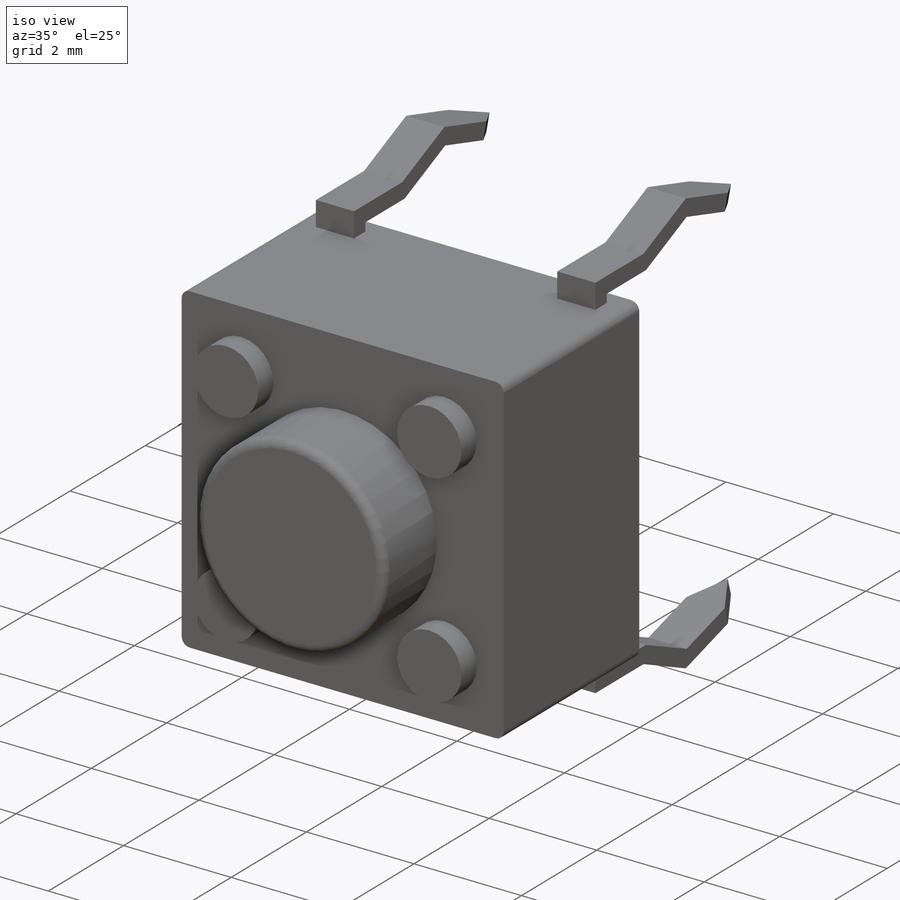
[diagram: iso view]
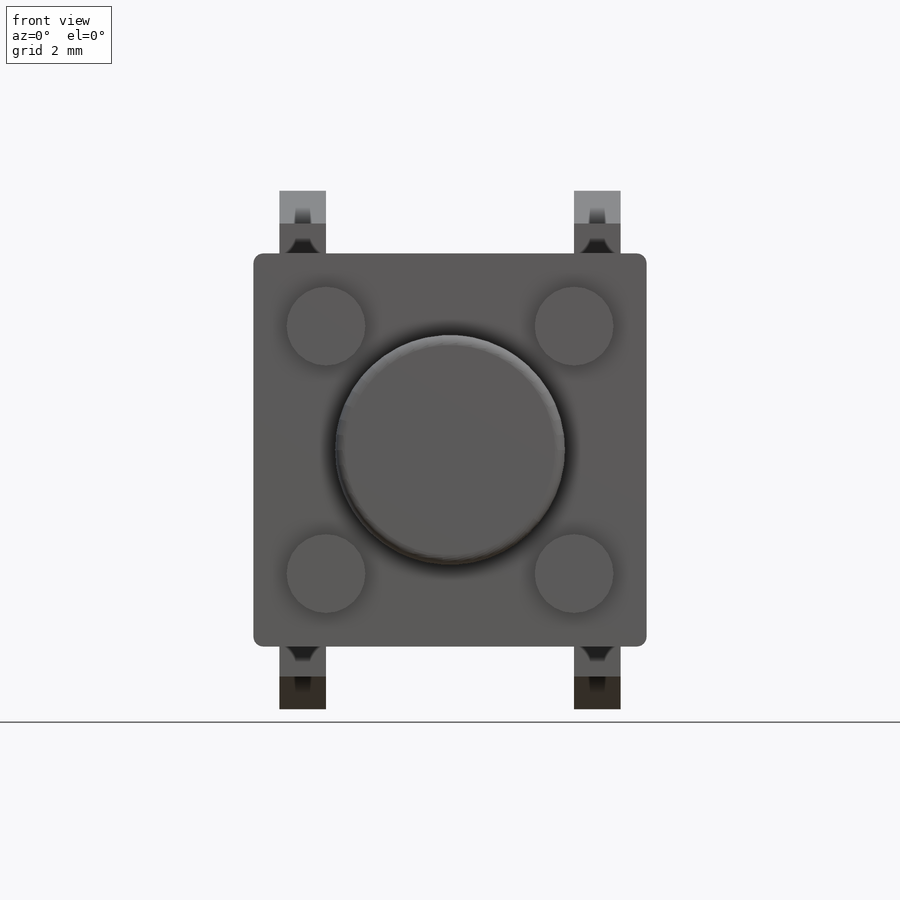
[diagram: front view]
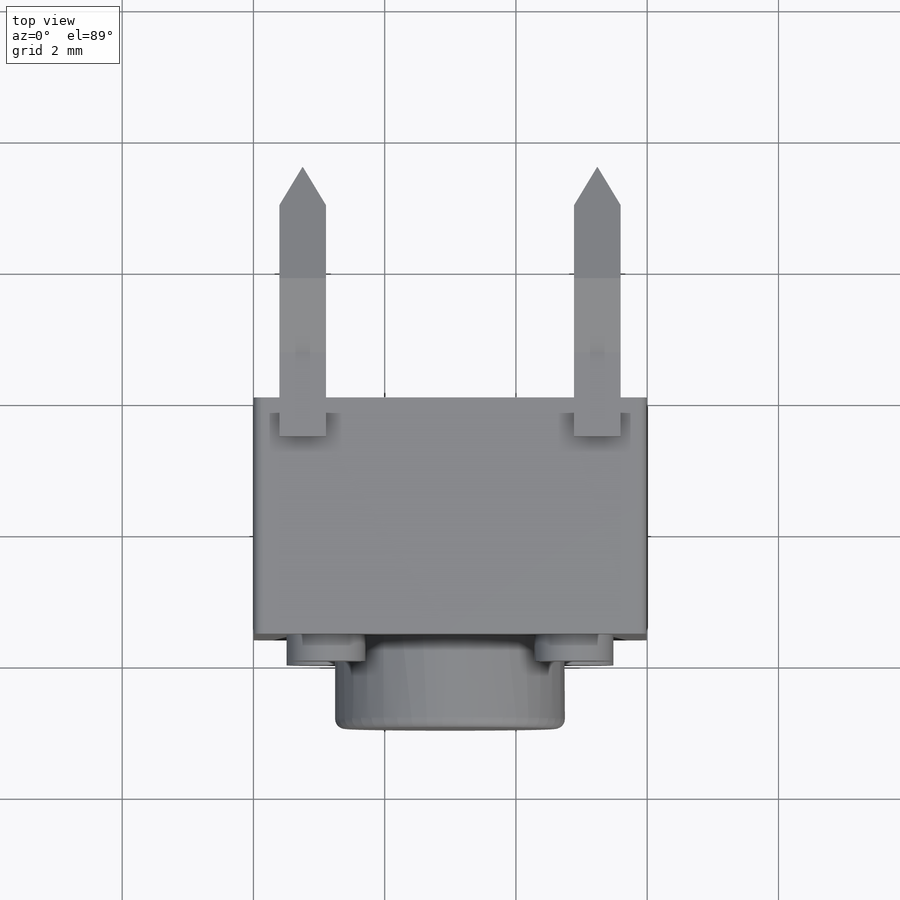
[diagram: top view]
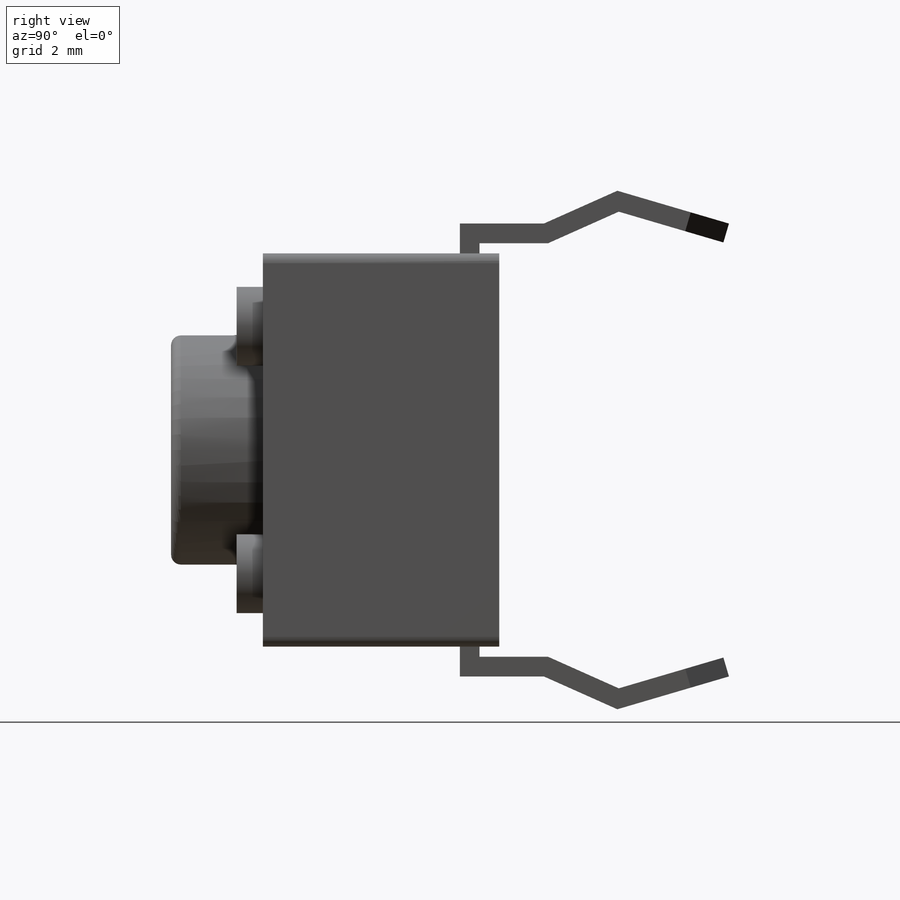
[diagram: right view]
SOLIDWORKS PART (.sldprt)
format: sldprt  version: not decoded by parser v0  size: 281,600 bytes
history: native  units: mm
features: sketch x4, extrude x3, plane x3, mirror x2, material x1, chamfer x1, fillet x1 (+13 scaffold rows collapsed)
feature tree (28):
  scaffold x13  (default folders/planes/origin — collapsed)
  material  "Material <not specified>"
  sketch  "Sketch2"  dims[D1=5.99mm D2=5.99mm]
  extrude  "Boss-Extrude1"  Depth=3.6mm
  sketch  "Sketch3"  dims[D1=3.5mm]
  extrude  "Boss-Extrude2"  Depth=1.4mm
  plane  "Plane1"  Offset=2.995mm
  plane  "Plane2"  Offset=2.995mm
  plane  "Plane3"  Offset=2.245mm
  sketch  "Sketch4"  dims[c1.D1=3.95mm c1.D2=1.8mm c1.D3=0.68mm c1.D4=3.5mm c1.D5=3.45mm c1.D6=4.1mm c2.D1=0.71mm c2.D5=0.3mm c2.D6=10.0mm c2.D7=5.0mm]
  chamfer  "Chamfer2"  Distance=0.35mm Angle=60deg
  mirror  "Mirror1"
  mirror  "Mirror2"
  fillet  "Fillet1"  Radius=0.15mm
  sketch  "Sketch5"  dims[D3=1.2mm D1=1.11mm D2=1.11mm D4=5.99mm]
  extrude  "Boss-Extrude3"  Depth=0.4mm
decode coverage: 9 of 11 modeling features carry decoded parameters
note: suppression state not decoded; provenance and decode notes live in map.json
